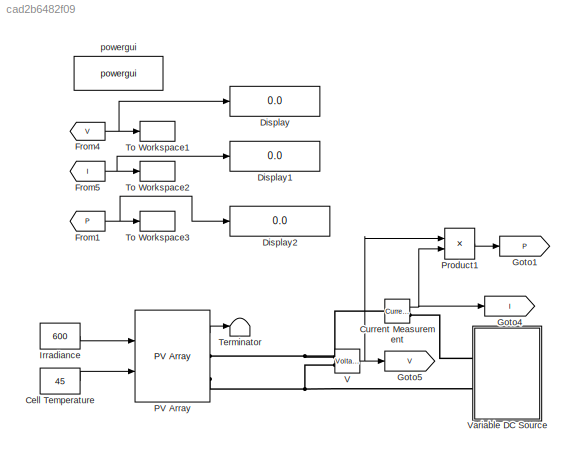
MODEL slx_cad2b6482f09
KIND model
CONFIG AbsTol = auto
CONFIG EnableMultiTasking = off
CONFIG FixedStep = Ts_Power
CONFIG MaxStep = auto
CONFIG MinStep = auto
CONFIG RelTol = 1e-4
CONFIG SampleTimeConstraint = Unconstrained
CONFIG SolverName = ode23tb
CONFIG StartTime = 0.0
CONFIG StopTime = 1e-3
BLOCK [Constant] Cell Temperature
  Value = 45
BLOCK [Reference] Current Measurement  REF=powerlib/Measurements/Current Measurement
  Ports = [0, 1, 0, 0, 0, 1, 1]
  SourceBlock = powerlib/Measurements/Current Measurement
  SourceProductBaseCode = PS
  SourceType = Current Measurement
  UserDataPersistent = on
BLOCK [Display] Display
  Decimation = 1
  Format = long
  Ports = [1]
BLOCK [Display] Display1
  Decimation = 1
  Format = long
  Ports = [1]
BLOCK [Display] Display2
  Decimation = 1
  Format = long
  Ports = [1]
BLOCK [From] From1
  GotoTag = P
BLOCK [From] From4
  GotoTag = V
BLOCK [From] From5
  GotoTag = I
BLOCK [Goto] Goto1
  GotoTag = P
BLOCK [Goto] Goto4
  GotoTag = I
BLOCK [Goto] Goto5
  GotoTag = V
BLOCK [Constant] Irradiance
  NameLocation = top
  Value = 600
BLOCK [Reference] PV Array  REF=re_lib/Solar/PV Array
  Ports = [2, 1, 0, 0, 0, 0, 2]
  SourceBlock = re_lib/Solar/PV Array
  SourceProductBaseCode = PS
  SourceType = PV array
BLOCK [Product] Product1
  Ports = [2, 1]
BLOCK [Terminator] Terminator
BLOCK [ToWorkspace] To Workspace1
  FixptAsFi = on
  MaxDataPoints = inf
  Ports = [1]
  SampleTime = -1
  Save2DSignal = 2-D array (concatenate along first dimension)
  VariableName = V
BLOCK [ToWorkspace] To Workspace2
  FixptAsFi = on
  MaxDataPoints = inf
  Ports = [1]
  SampleTime = -1
  Save2DSignal = 2-D array (concatenate along first dimension)
  VariableName = I
BLOCK [ToWorkspace] To Workspace3
  FixptAsFi = on
  MaxDataPoints = inf
  Ports = [1]
  SampleTime = -1
  Save2DSignal = 2-D array (concatenate along first dimension)
  VariableName = P
BLOCK [Reference] V  REF=powerlib/Measurements/Voltage Measurement
  Ports = [0, 1, 0, 0, 0, 2]
  SourceBlock = powerlib/Measurements/Voltage Measurement
  SourceProductBaseCode = PS
  SourceType = Voltage Measurement
  UserDataPersistent = on
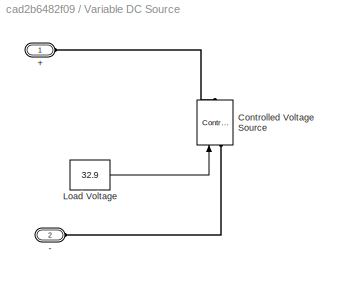
BLOCK [SubSystem] Variable DC Source
  Ports = [0, 0, 0, 0, 0, 2]
  RequestExecContextInheritance = off
BLOCK [PMIOPort] Variable DC Source/+
  Side = Left
BLOCK [PMIOPort] Variable DC Source/-
  Port = 2
  Side = Left
BLOCK [Reference] Variable DC Source/Controlled Voltage Source  REF=powerlib/Electrical
Sources/Controlled Voltage Source
  NameLocation = right
  Ports = [1, 0, 0, 0, 0, 1, 1]
  SourceBlock = powerlib/Electrical\nSources/Controlled Voltage Source
  SourceProductBaseCode = PS
  SourceType = Controlled Voltage Source
BLOCK [Constant] Variable DC Source/Load Voltage
  Value = 32.9
BLOCK [Reference] powergui  REF=powerlib/powergui
  Ports = []
  Priority = 1
  SourceBlock = powerlib/powergui
  SourceProductBaseCode = PS
  SourceType = PSB option menu block
LINE Cell Temperature:1 -> PV Array:2
NET Current Measurement:1 -> Goto4:1, Product1:2
NET From1:1 -> Display2:1, To Workspace3:1
NET From4:1 -> Display:1, To Workspace1:1
NET From5:1 -> Display1:1, To Workspace2:1
LINE Irradiance:1 -> PV Array:1
LINE PV Array:1 -> Terminator:1
LINE Product1:1 -> Goto1:1
NET V:1 -> Goto5:1, Product1:1
LINE Variable DC Source/Load Voltage:1 -> Variable DC Source/Controlled Voltage Source:1
PNET net1: Current Measurement:LConn1 -- PV Array:RConn1 -- V:LConn1
PLINE Current Measurement:RConn1 -- Variable DC Source:LConn1
PNET net2: PV Array:RConn2 -- V:LConn2 -- Variable DC Source:LConn2
PLINE Variable DC Source/+:RConn1 -- Variable DC Source/Controlled Voltage Source:RConn1
PLINE Variable DC Source/-:RConn1 -- Variable DC Source/Controlled Voltage Source:LConn1
note: NET lines group one-source signal fan-out (src -> all destinations, sorted); 1:1 wires keep LINE; PNET lines group multi-terminal physical nets as a canonical sorted terminal list (undirected conserving connections); 2-terminal nets keep the pairwise PLINE form
